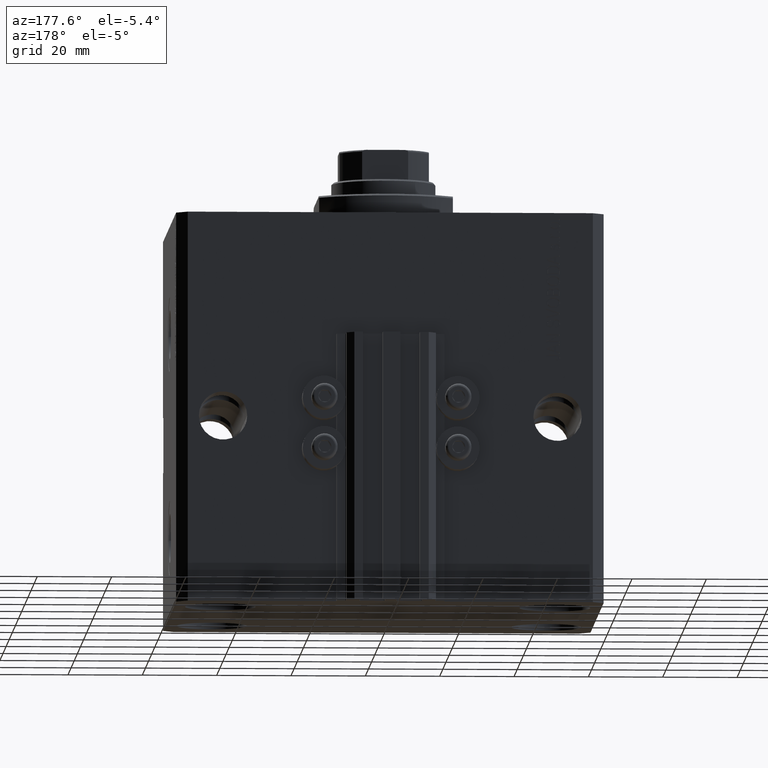
[diagram: clean part render]
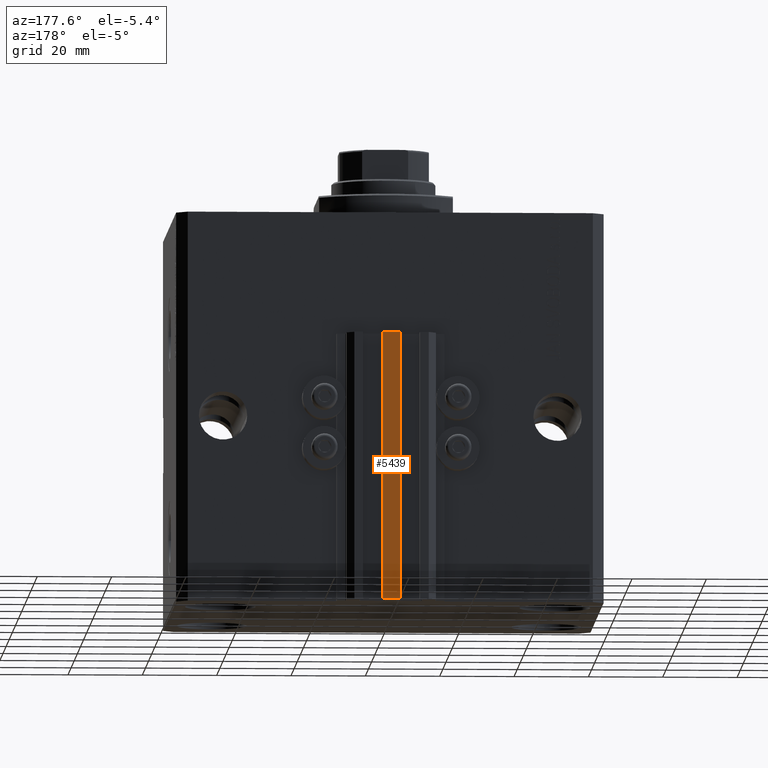
[diagram: same view with one face highlighted and labeled with its STEP entity id]
A machine part, auxiliary view. The second image highlights one B-rep face of the part: STEP entity #5439.
In plain terms, the highlighted planar face has unit normal (0, -1, 0).
Its self-contained STEP definition (entity closure, byte-faithful):
#330 = VERTEX_POINT ( 'NONE', #28182 ) ;
#1222 = ORIENTED_EDGE ( 'NONE', *, *, #25817, .F. ) ;
#1561 = LINE ( 'NONE', #6525, #2326 ) ;
#2326 = VECTOR ( 'NONE', #32162, 1000.000000000000000 ) ;
#2753 = DIRECTION ( 'NONE',  ( 1.000000000000000000, 0.000000000000000000, 0.000000000000000000 ) ) ;
#2981 = VECTOR ( 'NONE', #31146, 1000.000000000000000 ) ;
#5166 = LINE ( 'NONE', #21009, #45751 ) ;
#5282 = LINE ( 'NONE', #35387, #2981 ) ;
#5439 = ADVANCED_FACE ( 'NONE', ( #40863 ), #48097, .F. ) ;
#5732 = CARTESIAN_POINT ( 'NONE',  ( -2.350000000000003642, 53.00000000000000000, -33.00000000000000000 ) ) ;
#6525 = CARTESIAN_POINT ( 'NONE',  ( 2.349999999999999645, 53.00000000000000000, -105.0000000000000000 ) ) ;
#9028 = VERTEX_POINT ( 'NONE', #26293 ) ;
#14346 = ORIENTED_EDGE ( 'NONE', *, *, #37350, .T. ) ;
#17743 = DIRECTION ( 'NONE',  ( 0.000000000000000000, -1.000000000000000000, 0.000000000000000000 ) ) ;
#18465 = ORIENTED_EDGE ( 'NONE', *, *, #22196, .T. ) ;
#21009 = CARTESIAN_POINT ( 'NONE',  ( -2.350000000000003642, 53.00000000000000000, -105.0000000000000000 ) ) ;
#22196 = EDGE_CURVE ( 'NONE', #330, #9028, #5166, .T. ) ;
#23293 = VERTEX_POINT ( 'NONE', #42293 ) ;
#25548 = EDGE_LOOP ( 'NONE', ( #14346, #26801, #1222, #18465 ) ) ;
#25817 = EDGE_CURVE ( 'NONE', #330, #23293, #5282, .T. ) ;
#26293 = CARTESIAN_POINT ( 'NONE',  ( -2.350000000000003642, 53.00000000000000000, -33.00000000000000000 ) ) ;
#26801 = ORIENTED_EDGE ( 'NONE', *, *, #29097, .F. ) ;
#28182 = CARTESIAN_POINT ( 'NONE',  ( -2.350000000000003642, 53.00000000000000000, -105.0000000000000000 ) ) ;
#28963 = DIRECTION ( 'NONE',  ( 0.000000000000000000, 0.000000000000000000, 1.000000000000000000 ) ) ;
#29097 = EDGE_CURVE ( 'NONE', #23293, #30609, #1561, .T. ) ;
#29187 = DIRECTION ( 'NONE',  ( 0.000000000000000000, -0.000000000000000000, -1.000000000000000000 ) ) ;
#29508 = CARTESIAN_POINT ( 'NONE',  ( 2.349999999999999645, 53.00000000000000000, -33.00000000000000000 ) ) ;
#30609 = VERTEX_POINT ( 'NONE', #29508 ) ;
#31146 = DIRECTION ( 'NONE',  ( 1.000000000000000000, 0.000000000000000000, 0.000000000000000000 ) ) ;
#32162 = DIRECTION ( 'NONE',  ( 0.000000000000000000, 0.000000000000000000, 1.000000000000000000 ) ) ;
#35387 = CARTESIAN_POINT ( 'NONE',  ( -2.350000000000003642, 53.00000000000000000, -105.0000000000000000 ) ) ;
#36841 = AXIS2_PLACEMENT_3D ( 'NONE', #37141, #17743, #29187 ) ;
#37141 = CARTESIAN_POINT ( 'NONE',  ( -2.350000000000003642, 53.00000000000000000, -105.0000000000000000 ) ) ;
#37350 = EDGE_CURVE ( 'NONE', #9028, #30609, #40792, .T. ) ;
#40683 = VECTOR ( 'NONE', #2753, 1000.000000000000000 ) ;
#40792 = LINE ( 'NONE', #5732, #40683 ) ;
#40863 = FACE_OUTER_BOUND ( 'NONE', #25548, .T. ) ;
#42293 = CARTESIAN_POINT ( 'NONE',  ( 2.349999999999999645, 53.00000000000000000, -105.0000000000000000 ) ) ;
#45751 = VECTOR ( 'NONE', #28963, 1000.000000000000000 ) ;
#48097 = PLANE ( 'NONE',  #36841 ) ;